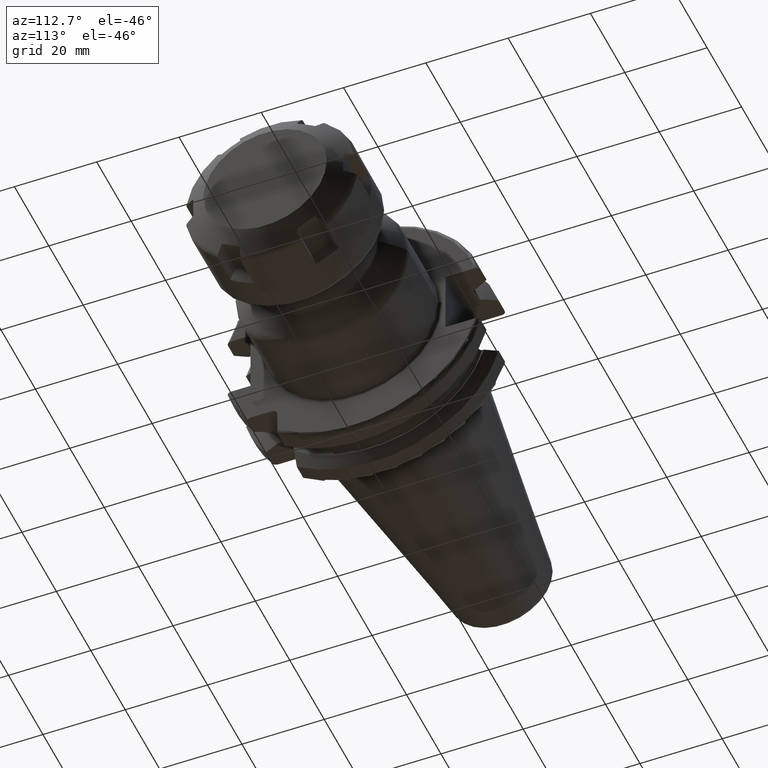
[diagram: clean part render]
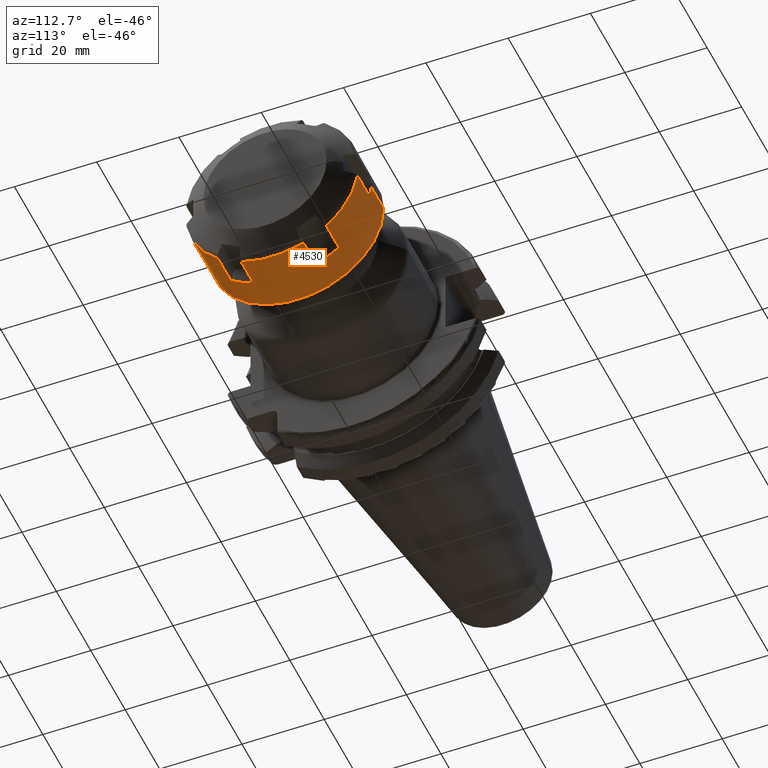
[diagram: same view with one face highlighted and labeled with its STEP entity id]
A machine part, auxiliary view. The second image highlights one B-rep face of the part: STEP entity #4530.
In plain terms, the highlighted cylindrical surface (partial cylindrical patch) has radius 21 mm, axis along (1, 0, 0).
Its self-contained STEP definition (entity closure, byte-faithful):
#3254=DIRECTION('',(9.999999999979E-1,1.452794262624E-6,-1.445246504649E-6));
#3255=VECTOR('',#3254,7.214202484702E0);
#3256=CARTESIAN_POINT('',(8.600008063689E0,7.578287451463E0,-1.958491746355E1));
#3257=LINE('',#3256,#3255);
#3270=DIRECTION('',(-1.E0,0.E0,0.E0));
#3271=VECTOR('',#3270,7.214210890546E0);
#3272=CARTESIAN_POINT('',(1.581421054838E1,1.317189611779E1,-1.635546247167E1));
#3273=LINE('',#3272,#3271);
#3352=CARTESIAN_POINT('',(1.581421054838E1,-1.317189611779E1,
-1.635546247167E1));
#3372=CARTESIAN_POINT('',(1.581421054838E1,-2.075019405E1,-3.229465418179E0));
#3374=CARTESIAN_POINT('',(1.581421054838E1,7.578297932215E0,-1.958492788985E1));
#3394=CARTESIAN_POINT('',(1.581421054838E1,-7.578297932215E0,
-1.958492788985E1));
#3402=CARTESIAN_POINT('',(1.581421054838E1,1.317189611779E1,-1.635546247167E1));
#3404=CARTESIAN_POINT('',(1.581421054838E1,2.075019405E1,-3.229465418179E0));
#3564=DIRECTION('',(-1.E0,3.594961594389E-14,0.E0));
#3565=VECTOR('',#3564,7.214210548375E0);
#3566=CARTESIAN_POINT('',(1.581421054838E1,-2.075019405E1,-3.229465418179E0));
#3567=LINE('',#3566,#3565);
#3579=CARTESIAN_POINT('',(1.581421054838E1,-1.792614389339E-14,0.E0));
#3580=DIRECTION('',(-1.E0,0.E0,0.E0));
#3581=DIRECTION('',(0.E0,9.881044785716E-1,-1.537840675323E-1));
#3582=AXIS2_PLACEMENT_3D('',#3579,#3580,#3581);
#3584=CARTESIAN_POINT('',(8.6E0,0.E0,0.E0));
#3585=DIRECTION('',(-1.E0,0.E0,0.E0));
#3586=DIRECTION('',(0.E0,1.E0,0.E0));
#3587=AXIS2_PLACEMENT_3D('',#3584,#3585,#3586);
#3589=DIRECTION('',(-1.E0,9.411549393136E-12,6.000804948597E-11));
#3590=VECTOR('',#3589,7.350000000040E0);
#3591=CARTESIAN_POINT('',(8.600000000040E0,2.099999999993E1,
-4.377820052165E-10));
#3592=LINE('',#3591,#3590);
#3593=CARTESIAN_POINT('',(1.25E0,0.E0,0.E0));
#3594=DIRECTION('',(-1.E0,0.E0,0.E0));
#3595=DIRECTION('',(0.E0,1.E0,0.E0));
#3596=AXIS2_PLACEMENT_3D('',#3593,#3594,#3595);
#3598=DIRECTION('',(-1.E0,-9.436200875805E-12,-6.000654573246E-11));
#3599=VECTOR('',#3598,7.350000000040E0);
#3600=CARTESIAN_POINT('',(8.600000000040E0,-2.099999999993E1,
4.377679851591E-10));
#3601=LINE('',#3600,#3599);
#3602=CARTESIAN_POINT('',(8.6E0,0.E0,0.E0));
#3603=DIRECTION('',(-1.E0,0.E0,0.E0));
#3604=DIRECTION('',(0.E0,-9.881044785716E-1,-1.537840675323E-1));
#3605=AXIS2_PLACEMENT_3D('',#3602,#3603,#3604);
#3607=CARTESIAN_POINT('',(1.581421054838E1,-1.792614389339E-14,0.E0));
#3608=DIRECTION('',(-1.E0,0.E0,0.E0));
#3609=DIRECTION('',(0.E0,-6.272331484661E-1,-7.788315462700E-1));
#3610=AXIS2_PLACEMENT_3D('',#3607,#3608,#3609);
#3612=CARTESIAN_POINT('',(1.581421054838E1,-1.792614389339E-14,0.E0));
#3613=DIRECTION('',(-1.E0,0.E0,0.E0));
#3614=DIRECTION('',(0.E0,3.608713301055E-1,-9.326156138023E-1));
#3615=AXIS2_PLACEMENT_3D('',#3612,#3613,#3614);
#3634=CARTESIAN_POINT('',(8.600000318507E0,-1.804967895792E-5,
1.352930437069E-5));
#3635=DIRECTION('',(-1.E0,0.E0,0.E0));
#3636=DIRECTION('',(0.E0,6.272333551021E-1,-7.788313798553E-1));
#3637=AXIS2_PLACEMENT_3D('',#3634,#3635,#3636);
#3653=DIRECTION('',(1.E0,0.E0,0.E0));
#3654=VECTOR('',#3653,7.214210548375E0);
#3655=CARTESIAN_POINT('',(8.6E0,2.075019405E1,-3.229465418179E0));
#3656=LINE('',#3655,#3654);
#3878=DIRECTION('',(9.999999999998E-1,6.709444709144E-7,9.098406604267E-8));
#3879=VECTOR('',#3878,7.214212575504E0);
#3880=CARTESIAN_POINT('',(8.599997972873E0,-1.317190095812E1,
-1.635546312805E1));
#3881=LINE('',#3880,#3879);
#3894=DIRECTION('',(-1.E0,0.E0,0.E0));
#3895=VECTOR('',#3894,7.214210815093E0);
#3896=CARTESIAN_POINT('',(1.581421054838E1,-7.578297932215E0,
-1.958492788985E1));
#3897=LINE('',#3896,#3895);
#3927=CARTESIAN_POINT('',(8.600000222181E0,-7.035000469932E-6,
-1.879731692430E-6));
#3928=DIRECTION('',(-1.E0,0.E0,0.E0));
#3929=DIRECTION('',(0.E0,-3.608710688571E-1,-9.326157148911E-1));
#3930=AXIS2_PLACEMENT_3D('',#3927,#3928,#3929);
#3946=CARTESIAN_POINT('',(1.25E0,2.1E1,0.E0));
#3947=CARTESIAN_POINT('',(1.25E0,-2.1E1,0.E0));
#3948=VERTEX_POINT('',#3946);
#3949=VERTEX_POINT('',#3947);
#3956=VERTEX_POINT('',#3404);
#3957=CARTESIAN_POINT('',(8.6E0,2.1E1,0.E0));
#3958=CARTESIAN_POINT('',(8.6E0,2.075019405E1,-3.229465418179E0));
#3959=VERTEX_POINT('',#3957);
#3960=VERTEX_POINT('',#3958);
#4001=VERTEX_POINT('',#3372);
#4002=CARTESIAN_POINT('',(8.6E0,-2.1E1,0.E0));
#4004=VERTEX_POINT('',#4002);
#4006=CARTESIAN_POINT('',(8.6E0,-2.075019405E1,-3.229465418179E0));
#4007=VERTEX_POINT('',#4006);
#4016=VERTEX_POINT('',#3352);
#4017=VERTEX_POINT('',#3394);
#4018=CARTESIAN_POINT('',(8.600000222181E0,-7.578297626635E0,
-1.958492710012E1));
#4019=CARTESIAN_POINT('',(8.600000222181E0,-1.317189658068E1,
-1.635546304645E1));
#4020=VERTEX_POINT('',#4018);
#4021=VERTEX_POINT('',#4019);
#4030=VERTEX_POINT('',#3374);
#4031=VERTEX_POINT('',#3402);
#4032=CARTESIAN_POINT('',(8.600000318507E0,1.317189540004E1,-1.635546158045E1));
#4033=CARTESIAN_POINT('',(8.600000318507E0,7.578298503418E0,-1.958492936603E1));
#4034=VERTEX_POINT('',#4032);
#4035=VERTEX_POINT('',#4033);
#4497=CARTESIAN_POINT('',(-1.E0,0.E0,0.E0));
#4498=DIRECTION('',(1.E0,0.E0,0.E0));
#4499=DIRECTION('',(0.E0,-1.E0,0.E0));
#4500=AXIS2_PLACEMENT_3D('',#4497,#4498,#4499);
#4501=CYLINDRICAL_SURFACE('',#4500,2.1E1);
#4503=ORIENTED_EDGE('',*,*,#4502,.F.);
#4504=ORIENTED_EDGE('',*,*,#4176,.F.);
#4505=ORIENTED_EDGE('',*,*,#4281,.F.);
#4507=ORIENTED_EDGE('',*,*,#4506,.F.);
#4509=ORIENTED_EDGE('',*,*,#4508,.F.);
#4511=ORIENTED_EDGE('',*,*,#4510,.T.);
#4513=ORIENTED_EDGE('',*,*,#4512,.T.);
#4515=ORIENTED_EDGE('',*,*,#4514,.F.);
#4517=ORIENTED_EDGE('',*,*,#4516,.F.);
#4518=ORIENTED_EDGE('',*,*,#4477,.F.);
#4519=ORIENTED_EDGE('',*,*,#4250,.F.);
#4521=ORIENTED_EDGE('',*,*,#4520,.F.);
#4523=ORIENTED_EDGE('',*,*,#4522,.F.);
#4525=ORIENTED_EDGE('',*,*,#4524,.F.);
#4526=ORIENTED_EDGE('',*,*,#4264,.F.);
#4527=ORIENTED_EDGE('',*,*,#4100,.F.);
#4528=EDGE_LOOP('',(#4503,#4504,#4505,#4507,#4509,#4511,#4513,#4515,#4517,#4518,
#4519,#4521,#4523,#4525,#4526,#4527));
#4529=FACE_OUTER_BOUND('',#4528,.F.);
#4530=ADVANCED_FACE('',(#4529),#4501,.T.);
#3583=CIRCLE('',#3582,2.1E1);
#3588=CIRCLE('',#3587,2.1E1);
#3597=CIRCLE('',#3596,2.1E1);
#3606=CIRCLE('',#3605,2.1E1);
#3611=CIRCLE('',#3610,2.1E1);
#3616=CIRCLE('',#3615,2.1E1);
#3638=CIRCLE('',#3637,2.100002071410E1);
#3931=CIRCLE('',#3930,2.099999486142E1);
#4100=EDGE_CURVE('',#4035,#4030,#3257,.T.);
#4176=EDGE_CURVE('',#4031,#4034,#3273,.T.);
#4250=EDGE_CURVE('',#4016,#4001,#3611,.T.);
#4264=EDGE_CURVE('',#4030,#4017,#3616,.T.);
#4281=EDGE_CURVE('',#3956,#4031,#3583,.T.);
#4477=EDGE_CURVE('',#4001,#4007,#3567,.T.);
#4502=EDGE_CURVE('',#4034,#4035,#3638,.T.);
#4506=EDGE_CURVE('',#3960,#3956,#3656,.T.);
#4508=EDGE_CURVE('',#3959,#3960,#3588,.T.);
#4510=EDGE_CURVE('',#3959,#3948,#3592,.T.);
#4512=EDGE_CURVE('',#3948,#3949,#3597,.T.);
#4514=EDGE_CURVE('',#4004,#3949,#3601,.T.);
#4516=EDGE_CURVE('',#4007,#4004,#3606,.T.);
#4520=EDGE_CURVE('',#4021,#4016,#3881,.T.);
#4522=EDGE_CURVE('',#4020,#4021,#3931,.T.);
#4524=EDGE_CURVE('',#4017,#4020,#3897,.T.);